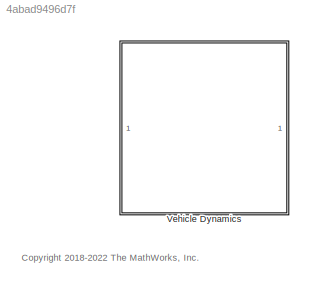
MODEL slx_4abad9496d7f
KIND library
CONFIG AbsTol = auto
CONFIG EnableMultiTasking = off
CONFIG FixedStep = auto
CONFIG MaxStep = auto
CONFIG MinStep = auto
CONFIG RelTol = 1e-3
CONFIG SampleTimeConstraint = Unconstrained
CONFIG SolverName = VariableStepAuto
CONFIG StartTime = 0.0
CONFIG StopTime = 10.0
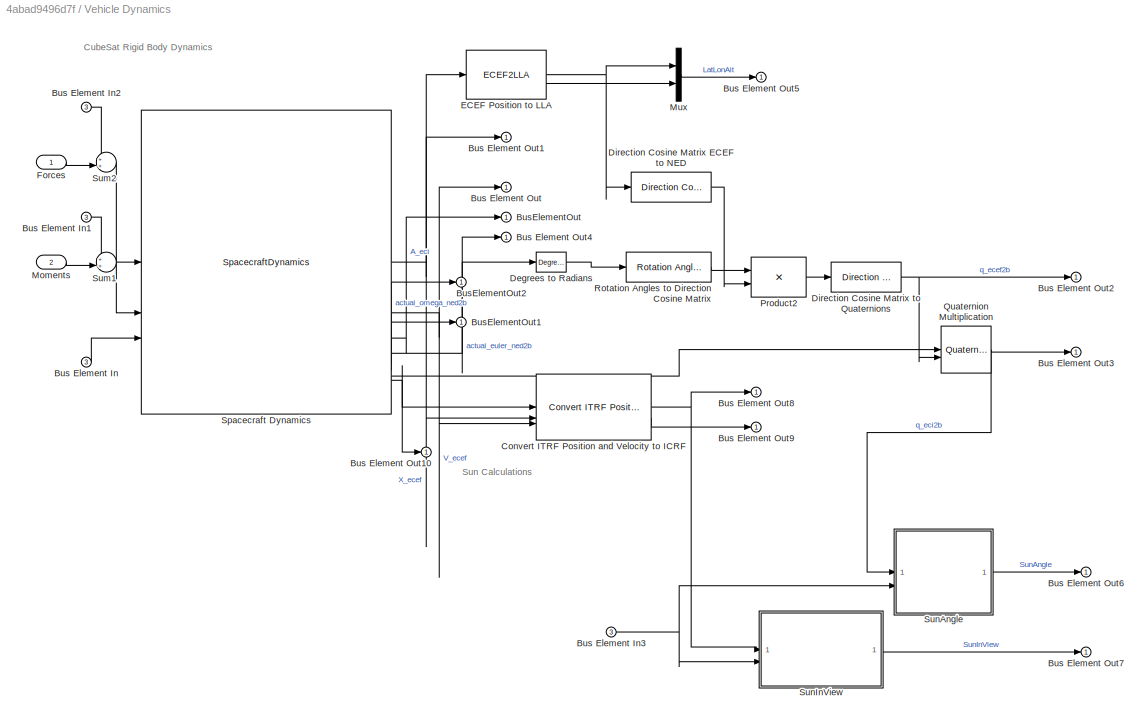
BLOCK [SubSystem] Vehicle Dynamics
BLOCK [Inport] Vehicle Dynamics/Bus Element In
  Port = 3
BLOCK [Inport] Vehicle Dynamics/Bus Element In1
  Port = 3
BLOCK [Inport] Vehicle Dynamics/Bus Element In2
  Port = 3
BLOCK [Inport] Vehicle Dynamics/Bus Element In3
  Port = 3
BLOCK [Outport] Vehicle Dynamics/Bus Element Out
  VectorParamsAs1DForOutWhenUnconnected = off
BLOCK [Outport] Vehicle Dynamics/Bus Element Out1
  VectorParamsAs1DForOutWhenUnconnected = off
BLOCK [Outport] Vehicle Dynamics/Bus Element Out10
  VectorParamsAs1DForOutWhenUnconnected = off
BLOCK [Outport] Vehicle Dynamics/Bus Element Out2
  VectorParamsAs1DForOutWhenUnconnected = off
BLOCK [Outport] Vehicle Dynamics/Bus Element Out3
  VectorParamsAs1DForOutWhenUnconnected = off
BLOCK [Outport] Vehicle Dynamics/Bus Element Out4
  VectorParamsAs1DForOutWhenUnconnected = off
BLOCK [Outport] Vehicle Dynamics/Bus Element Out5
  VectorParamsAs1DForOutWhenUnconnected = off
BLOCK [Outport] Vehicle Dynamics/Bus Element Out6
  VectorParamsAs1DForOutWhenUnconnected = off
BLOCK [Outport] Vehicle Dynamics/Bus Element Out7
  VectorParamsAs1DForOutWhenUnconnected = off
BLOCK [Outport] Vehicle Dynamics/Bus Element Out8
  VectorParamsAs1DForOutWhenUnconnected = off
BLOCK [Outport] Vehicle Dynamics/Bus Element Out9
  VectorParamsAs1DForOutWhenUnconnected = off
BLOCK [Outport] Vehicle Dynamics/BusElementOut
BLOCK [Outport] Vehicle Dynamics/BusElementOut1
BLOCK [Outport] Vehicle Dynamics/BusElementOut2
BLOCK [Reference] Vehicle Dynamics/Convert ITRF Position and Velocity to ICRF  REF=aerolibattitudesys/Convert ITRF Position
and Velocity to ICRF
  SourceBlock = aerolibattitudesys/Convert ITRF Position\nand Velocity to ICRF
  SourceType = ITRF to ICRF
BLOCK [Reference] Vehicle Dynamics/Degrees to Radians  REF=simulink_extras/Transformations/Degrees to
Radians
  SourceBlock = simulink_extras/Transformations/Degrees to\nRadians
  SourceType = DegreesToRadians
BLOCK [Reference] Vehicle Dynamics/Direction Cosine Matrix ECEF to NED  REF=aerolibtransform2/Direction Cosine Matrix
ECEF to NED
  SourceBlock = aerolibtransform2/Direction Cosine Matrix\nECEF to NED
  SourceType = DCM ECEF to NED
BLOCK [Reference] Vehicle Dynamics/Direction Cosine Matrix to Quaternions  REF=sharedtransform/Direction Cosine Matrix 
to Quaternions
  SourceBlock = sharedtransform/Direction Cosine Matrix \nto Quaternions
  SourceType = DCM2Quaternion
BLOCK [ECEF2LLA] Vehicle Dynamics/ECEF Position to LLA
BLOCK [Inport] Vehicle Dynamics/Forces
BLOCK [Inport] Vehicle Dynamics/Moments
  Port = 2
BLOCK [Mux] Vehicle Dynamics/Mux
  DisplayOption = bar
  Inputs = 2
BLOCK [Product] Vehicle Dynamics/Product2
  Multiplication = Matrix(*)
  NameLocation = top
  RndMeth = Zero
BLOCK [Reference] Vehicle Dynamics/Quaternion Multiplication  REF=aerolibutil/Quaternion
Multiplication
  SourceBlock = aerolibutil/Quaternion\nMultiplication
  SourceType = Quaternion Multiplication
BLOCK [Reference] Vehicle Dynamics/Rotation Angles to Direction Cosine Matrix  REF=sharedtransform/Rotation Angles to
Direction Cosine Matrix
  AttributesFormatString = Rotation Order: %<rotationOrder>
  SourceBlock = sharedtransform/Rotation Angles to\nDirection Cosine Matrix
  SourceType = Ang2DCM
BLOCK [SpacecraftDynamics] Vehicle Dynamics/Spacecraft Dynamics
  accelFrame = Fixed-frame
  accelIn = on
  attitude = initCond.euler
  attitudeFormat = Euler angles
  attitudeFrame = NED
  attitudeRate = initCond.pqr
  dragArea = 0.03
  inertia = vehicle.inertia
  inertialPosition = initCond.r_eci
  inertialVelocity = initCond.v_eci
  mass = vehicle.mass
  outportFrame = Fixed-frame
  outputAccel = on
  outputAngAccel = on
  outputTransform = on
  startDate = initCond.simStartDate.JD
  stateFormatNum = ICRF state vector
  useDrag = on
BLOCK [Sum] Vehicle Dynamics/Sum1
  Inputs = ++|
BLOCK [Sum] Vehicle Dynamics/Sum2
  Inputs = ++|
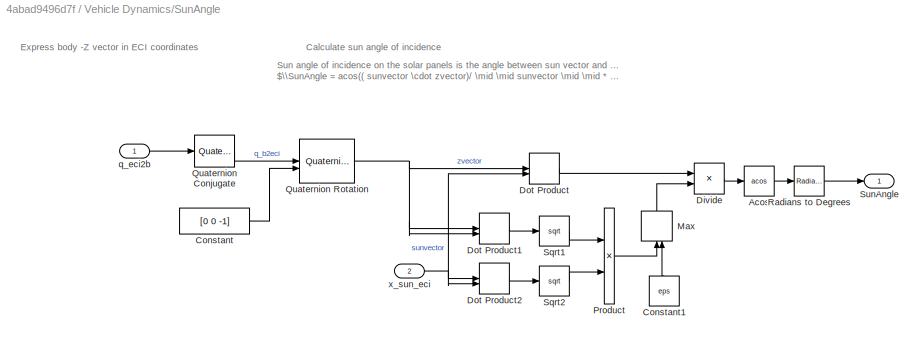
BLOCK [SubSystem] Vehicle Dynamics/SunAngle
  Commented = on
BLOCK [Trigonometry] Vehicle Dynamics/SunAngle/Acos
  Operator = acos
BLOCK [Constant] Vehicle Dynamics/SunAngle/Constant
  SampleTime = 0
  Value = [0 0 -1]
BLOCK [Constant] Vehicle Dynamics/SunAngle/Constant1
  NameLocation = right
  Value = eps
BLOCK [Product] Vehicle Dynamics/SunAngle/Divide
  Inputs = */
BLOCK [DotProduct] Vehicle Dynamics/SunAngle/Dot Product
  OutDataTypeStr = Inherit: Inherit via internal rule
BLOCK [DotProduct] Vehicle Dynamics/SunAngle/Dot Product1
  OutDataTypeStr = Inherit: Inherit via internal rule
BLOCK [DotProduct] Vehicle Dynamics/SunAngle/Dot Product2
  OutDataTypeStr = Inherit: Inherit via internal rule
BLOCK [MinMax] Vehicle Dynamics/SunAngle/Max
  Function = max
  Inputs = 2
  NameLocation = right
BLOCK [Product] Vehicle Dynamics/SunAngle/Product
BLOCK [Reference] Vehicle Dynamics/SunAngle/Quaternion Conjugate  REF=aerolibutil/Quaternion
Conjugate
  SourceBlock = aerolibutil/Quaternion\nConjugate
  SourceType = Quaternion Conjugate
BLOCK [Reference] Vehicle Dynamics/SunAngle/Quaternion Rotation  REF=aerolibutil/Quaternion
Rotation
  SourceBlock = aerolibutil/Quaternion\nRotation
  SourceType = Quaternion Rotation
BLOCK [Reference] Vehicle Dynamics/SunAngle/Radians to Degrees  REF=simulink_extras/Transformations/Radians
to Degrees
  SourceBlock = simulink_extras/Transformations/Radians\nto Degrees
  SourceType = RadiansToDegrees
BLOCK [Sqrt] Vehicle Dynamics/SunAngle/Sqrt1
BLOCK [Sqrt] Vehicle Dynamics/SunAngle/Sqrt2
BLOCK [Outport] Vehicle Dynamics/SunAngle/SunAngle
  SampleTime = 0
BLOCK [Inport] Vehicle Dynamics/SunAngle/q_eci2b
  SampleTime = 0
BLOCK [Inport] Vehicle Dynamics/SunAngle/x_sun_eci
  Port = 2
  SampleTime = 0
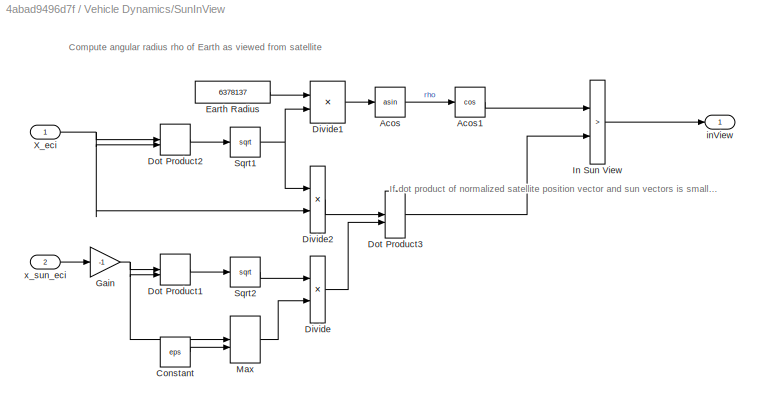
BLOCK [SubSystem] Vehicle Dynamics/SunInView
  Commented = on
BLOCK [Trigonometry] Vehicle Dynamics/SunInView/Acos
  Operator = asin
BLOCK [Trigonometry] Vehicle Dynamics/SunInView/Acos1
  Operator = cos
BLOCK [Constant] Vehicle Dynamics/SunInView/Constant
  Value = eps
BLOCK [Product] Vehicle Dynamics/SunInView/Divide
  Inputs = */
BLOCK [Product] Vehicle Dynamics/SunInView/Divide1
  Inputs = */
BLOCK [Product] Vehicle Dynamics/SunInView/Divide2
  Inputs = */
BLOCK [DotProduct] Vehicle Dynamics/SunInView/Dot Product1
  OutDataTypeStr = Inherit: Inherit via internal rule
BLOCK [DotProduct] Vehicle Dynamics/SunInView/Dot Product2
  OutDataTypeStr = Inherit: Inherit via internal rule
BLOCK [DotProduct] Vehicle Dynamics/SunInView/Dot Product3
  OutDataTypeStr = Inherit: Inherit via internal rule
BLOCK [Constant] Vehicle Dynamics/SunInView/Earth Radius
  SampleTime = 0
  Value = 6378137
  VectorParams1D = off
BLOCK [Gain] Vehicle Dynamics/SunInView/Gain
  Gain = -1
BLOCK [RelationalOperator] Vehicle Dynamics/SunInView/In Sun View
  InputSameDT = off
  Operator = >
  OutDataTypeStr = boolean
  RndMeth = Simplest
  ZeroCross = off
BLOCK [MinMax] Vehicle Dynamics/SunInView/Max
  Function = max
  Inputs = 2
BLOCK [Sqrt] Vehicle Dynamics/SunInView/Sqrt1
BLOCK [Sqrt] Vehicle Dynamics/SunInView/Sqrt2
BLOCK [Inport] Vehicle Dynamics/SunInView/X_eci
BLOCK [Outport] Vehicle Dynamics/SunInView/inView
  SampleTime = 0
BLOCK [Inport] Vehicle Dynamics/SunInView/x_sun_eci
  Port = 2
  SampleTime = 0
ANNOTATION (root): <copyright redacted>
ANNOTATION Vehicle Dynamics: CubeSat Rigid Body Dynamics
ANNOTATION Vehicle Dynamics: Sun Calculations
ANNOTATION Vehicle Dynamics/SunAngle: Sun angle of incidence on the solar panels is the angle between sun vector and vector pointing out of spacecraft -Z plane: $\\SunAngle = acos(( sunvector \cdot zvector)/ \mid \mid sunvector \mid \mid * \mid \mid zvector \mid \mid))$
ANNOTATION Vehicle Dynamics/SunAngle: Calculate sun angle of incidence
ANNOTATION Vehicle Dynamics/SunAngle: Express body -Z vector in ECI coordinates
ANNOTATION Vehicle Dynamics/SunInView: Compute angular radius rho of Earth as viewed from satellite
ANNOTATION Vehicle Dynamics/SunInView: If dot product of normalized satellite position vector and sun vectors is smaller than cos rho then Earth is not blocking sun.
LINE Vehicle Dynamics/Bus Element In1:1 -> Vehicle Dynamics/Sum1:1
LINE Vehicle Dynamics/Bus Element In2:1 -> Vehicle Dynamics/Sum2:1
NET Vehicle Dynamics/Bus Element In3:1 -> Vehicle Dynamics/SunAngle:2, Vehicle Dynamics/SunInView:2
LINE Vehicle Dynamics/Bus Element In:1 -> Vehicle Dynamics/Spacecraft Dynamics:3
NET Vehicle Dynamics/Convert ITRF Position and Velocity to ICRF:1 -> Vehicle Dynamics/Bus Element Out8:1, Vehicle Dynamics/SunInView:1
LINE Vehicle Dynamics/Convert ITRF Position and Velocity to ICRF:2 -> Vehicle Dynamics/Bus Element Out9:1
LINE Vehicle Dynamics/Degrees to Radians:1 -> Vehicle Dynamics/Rotation Angles to Direction Cosine Matrix:1
LINE Vehicle Dynamics/Direction Cosine Matrix ECEF to NED:1 -> Vehicle Dynamics/Product2:2
NET Vehicle Dynamics/Direction Cosine Matrix to Quaternions:1 -> Vehicle Dynamics/Bus Element Out2:1, Vehicle Dynamics/Quaternion Multiplication:2
NET Vehicle Dynamics/ECEF Position to LLA:1 -> Vehicle Dynamics/Direction Cosine Matrix ECEF to NED:1, Vehicle Dynamics/Mux:1
LINE Vehicle Dynamics/ECEF Position to LLA:2 -> Vehicle Dynamics/Mux:2
LINE Vehicle Dynamics/Forces:1 -> Vehicle Dynamics/Sum2:2
LINE Vehicle Dynamics/Moments:1 -> Vehicle Dynamics/Sum1:2
LINE Vehicle Dynamics/Mux:1 -> Vehicle Dynamics/Bus Element Out5:1
LINE Vehicle Dynamics/Product2:1 -> Vehicle Dynamics/Direction Cosine Matrix to Quaternions:1
NET Vehicle Dynamics/Quaternion Multiplication:1 -> Vehicle Dynamics/Bus Element Out3:1, Vehicle Dynamics/SunAngle:1
LINE Vehicle Dynamics/Rotation Angles to Direction Cosine Matrix:1 -> Vehicle Dynamics/Product2:1
NET Vehicle Dynamics/Spacecraft Dynamics:1 -> Vehicle Dynamics/Bus Element Out1:1, Vehicle Dynamics/Convert ITRF Position and Velocity to ICRF:2, Vehicle Dynamics/ECEF Position to LLA:1
NET Vehicle Dynamics/Spacecraft Dynamics:2 -> Vehicle Dynamics/Bus Element Out:1, Vehicle Dynamics/Convert ITRF Position and Velocity to ICRF:3
LINE Vehicle Dynamics/Spacecraft Dynamics:3 -> Vehicle Dynamics/BusElementOut:1
NET Vehicle Dynamics/Spacecraft Dynamics:4 -> Vehicle Dynamics/Bus Element Out4:1, Vehicle Dynamics/Degrees to Radians:1
LINE Vehicle Dynamics/Spacecraft Dynamics:5 -> Vehicle Dynamics/BusElementOut2:1
LINE Vehicle Dynamics/Spacecraft Dynamics:6 -> Vehicle Dynamics/BusElementOut1:1
LINE Vehicle Dynamics/Spacecraft Dynamics:7 -> Vehicle Dynamics/Quaternion Multiplication:1
NET Vehicle Dynamics/Spacecraft Dynamics:8 -> Vehicle Dynamics/Bus Element Out10:1, Vehicle Dynamics/Convert ITRF Position and Velocity to ICRF:1
LINE Vehicle Dynamics/Sum1:1 -> Vehicle Dynamics/Spacecraft Dynamics:2
LINE Vehicle Dynamics/Sum2:1 -> Vehicle Dynamics/Spacecraft Dynamics:1
LINE Vehicle Dynamics/SunAngle/Acos:1 -> Vehicle Dynamics/SunAngle/Radians to Degrees:1
LINE Vehicle Dynamics/SunAngle/Constant1:1 -> Vehicle Dynamics/SunAngle/Max:2
LINE Vehicle Dynamics/SunAngle/Constant:1 -> Vehicle Dynamics/SunAngle/Quaternion Rotation:2
LINE Vehicle Dynamics/SunAngle/Divide:1 -> Vehicle Dynamics/SunAngle/Acos:1
LINE Vehicle Dynamics/SunAngle/Dot Product1:1 -> Vehicle Dynamics/SunAngle/Sqrt1:1
LINE Vehicle Dynamics/SunAngle/Dot Product2:1 -> Vehicle Dynamics/SunAngle/Sqrt2:1
LINE Vehicle Dynamics/SunAngle/Dot Product:1 -> Vehicle Dynamics/SunAngle/Divide:1
LINE Vehicle Dynamics/SunAngle/Max:1 -> Vehicle Dynamics/SunAngle/Divide:2
LINE Vehicle Dynamics/SunAngle/Product:1 -> Vehicle Dynamics/SunAngle/Max:1
LINE Vehicle Dynamics/SunAngle/Quaternion Conjugate:1 -> Vehicle Dynamics/SunAngle/Quaternion Rotation:1
NET Vehicle Dynamics/SunAngle/Quaternion Rotation:1 -> Vehicle Dynamics/SunAngle/Dot Product1:1, Vehicle Dynamics/SunAngle/Dot Product1:2, Vehicle Dynamics/SunAngle/Dot Product:1
LINE Vehicle Dynamics/SunAngle/Radians to Degrees:1 -> Vehicle Dynamics/SunAngle/SunAngle:1
LINE Vehicle Dynamics/SunAngle/Sqrt1:1 -> Vehicle Dynamics/SunAngle/Product:1
LINE Vehicle Dynamics/SunAngle/Sqrt2:1 -> Vehicle Dynamics/SunAngle/Product:2
LINE Vehicle Dynamics/SunAngle/q_eci2b:1 -> Vehicle Dynamics/SunAngle/Quaternion Conjugate:1
NET Vehicle Dynamics/SunAngle/x_sun_eci:1 -> Vehicle Dynamics/SunAngle/Dot Product2:1, Vehicle Dynamics/SunAngle/Dot Product2:2, Vehicle Dynamics/SunAngle/Dot Product:2
LINE Vehicle Dynamics/SunAngle:1 -> Vehicle Dynamics/Bus Element Out6:1
LINE Vehicle Dynamics/SunInView/Acos1:1 -> Vehicle Dynamics/SunInView/In Sun View:1
LINE Vehicle Dynamics/SunInView/Acos:1 -> Vehicle Dynamics/SunInView/Acos1:1
LINE Vehicle Dynamics/SunInView/Constant:1 -> Vehicle Dynamics/SunInView/Max:2
LINE Vehicle Dynamics/SunInView/Divide1:1 -> Vehicle Dynamics/SunInView/Acos:1
LINE Vehicle Dynamics/SunInView/Divide2:1 -> Vehicle Dynamics/SunInView/Dot Product3:1
LINE Vehicle Dynamics/SunInView/Divide:1 -> Vehicle Dynamics/SunInView/Dot Product3:2
LINE Vehicle Dynamics/SunInView/Dot Product1:1 -> Vehicle Dynamics/SunInView/Sqrt2:1
LINE Vehicle Dynamics/SunInView/Dot Product2:1 -> Vehicle Dynamics/SunInView/Sqrt1:1
LINE Vehicle Dynamics/SunInView/Dot Product3:1 -> Vehicle Dynamics/SunInView/In Sun View:2
LINE Vehicle Dynamics/SunInView/Earth Radius:1 -> Vehicle Dynamics/SunInView/Divide1:1
NET Vehicle Dynamics/SunInView/Gain:1 -> Vehicle Dynamics/SunInView/Dot Product1:1, Vehicle Dynamics/SunInView/Dot Product1:2, Vehicle Dynamics/SunInView/Max:1
LINE Vehicle Dynamics/SunInView/In Sun View:1 -> Vehicle Dynamics/SunInView/inView:1
LINE Vehicle Dynamics/SunInView/Max:1 -> Vehicle Dynamics/SunInView/Divide:2
NET Vehicle Dynamics/SunInView/Sqrt1:1 -> Vehicle Dynamics/SunInView/Divide1:2, Vehicle Dynamics/SunInView/Divide2:1
LINE Vehicle Dynamics/SunInView/Sqrt2:1 -> Vehicle Dynamics/SunInView/Divide:1
NET Vehicle Dynamics/SunInView/X_eci:1 -> Vehicle Dynamics/SunInView/Divide2:2, Vehicle Dynamics/SunInView/Dot Product2:1, Vehicle Dynamics/SunInView/Dot Product2:2
LINE Vehicle Dynamics/SunInView/x_sun_eci:1 -> Vehicle Dynamics/SunInView/Gain:1
LINE Vehicle Dynamics/SunInView:1 -> Vehicle Dynamics/Bus Element Out7:1
note: NET lines group one-source signal fan-out (src -> all destinations, sorted); 1:1 wires keep LINE
